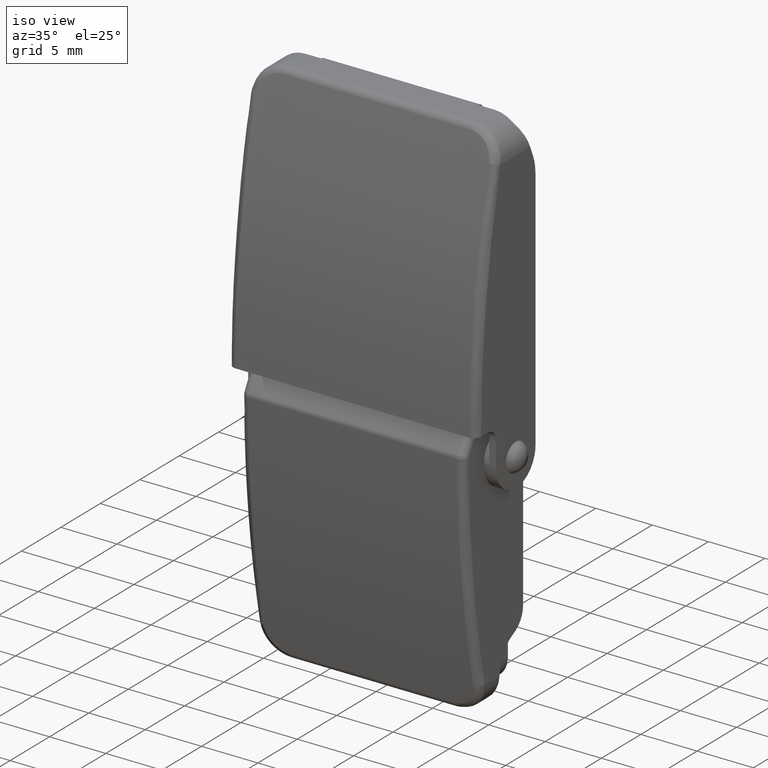
[diagram: clean part render]
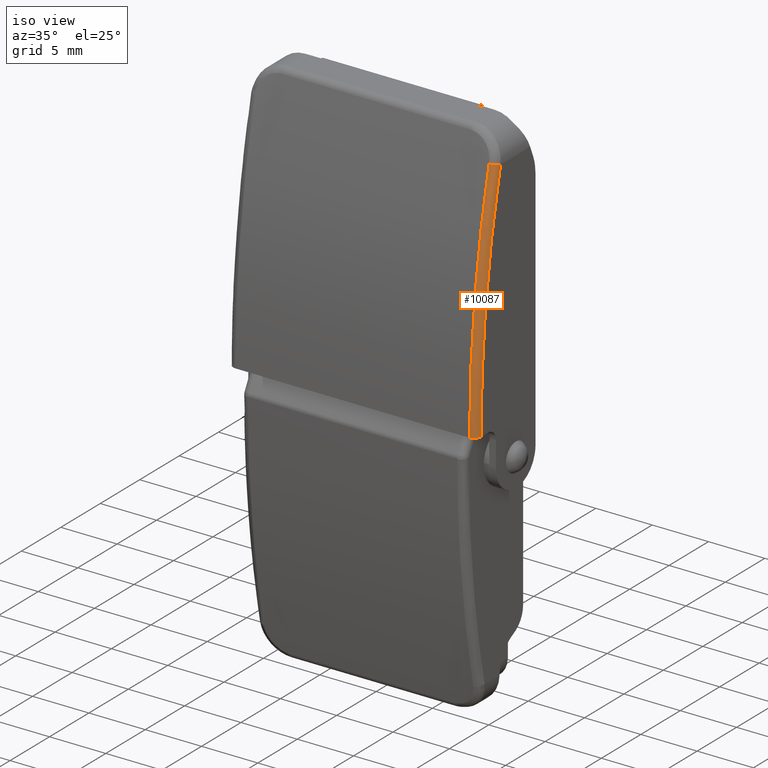
[diagram: same view with one face highlighted and labeled with its STEP entity id]
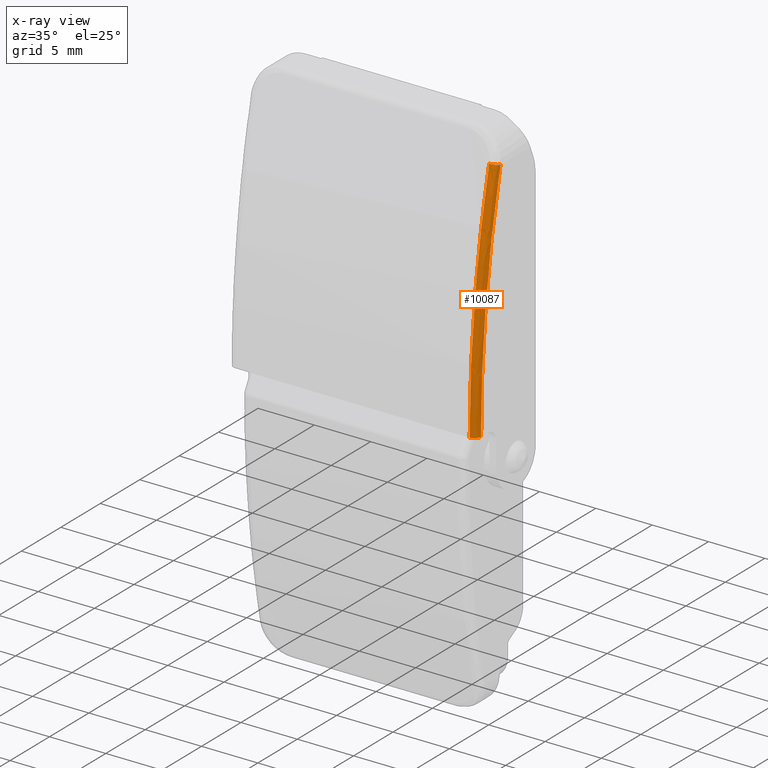
[diagram: x-ray of the same camera — body ghosted, the highlighted face saturated]
A machine part, iso view. The second image highlights one B-rep face of the part: STEP entity #10087.
The next image is the same camera in x-ray: the body ghosted, the highlighted face saturated — about 0% of this face is hidden behind the body in this view.
In plain terms, the highlighted face is a freeform B-spline surface patch.
Its self-contained STEP definition (entity closure, byte-faithful):
#10008=CARTESIAN_POINT('',(10.998547623441574,-7.352143388707867,6.249455654797401));
#10009=CARTESIAN_POINT('',(10.998547623441571,-7.488266922143183,17.904940407322439));
#10010=CARTESIAN_POINT('',(10.998547623441574,-4.649268138406348,29.210202029179726));
#10011=CARTESIAN_POINT('',(11.046522251315123,-8.040341450340110,6.241418241181255));
#10012=CARTESIAN_POINT('',(11.046522251315123,-8.177506425905913,17.986075766159409));
#10013=CARTESIAN_POINT('',(11.046522251315123,-5.316787276357438,29.377830703698869));
#10014=CARTESIAN_POINT('',(10.358277296940097,-7.992369522537929,6.241978501732986));
#10015=CARTESIAN_POINT('',(10.358277296940098,-8.129461902742774,17.980420098418794));
#10016=CARTESIAN_POINT('',(10.358277296940095,-5.270256805439781,29.366145883412496));
#10024=(BOUNDED_SURFACE()B_SPLINE_SURFACE(2,2,((#10008,#10011,#10014),(#10009,#10012,#10015),(#10010,#10013,#10016)),.UNSPECIFIED.,.F.,.F.,.U.)B_SPLINE_SURFACE_WITH_KNOTS((3,3),(3,3),(27.609394174766539,50.986343282508848),(0.125322360388190,1.218747165211290),.UNSPECIFIED.)GEOMETRIC_REPRESENTATION_ITEM()RATIONAL_B_SPLINE_SURFACE(((0.882118789328395,0.578868277632000,0.882119123008712),(0.875035926940185,0.574220327264125,0.875036257941257),(0.882583384492133,0.579173156527544,0.882583718348193)))REPRESENTATION_ITEM('')SURFACE());
#10025=CARTESIAN_POINT('',(11.000000000008200,-4.939648160148010,28.200000000017251));
#10026=VERTEX_POINT('',#10025);
#10027=CARTESIAN_POINT('',(10.400000000008200,-5.523245814548989,28.339333333350250));
#10028=VERTEX_POINT('',#10027);
#10029=CARTESIAN_POINT('',(11.000000000008200,-4.939648160148010,28.200000000017251));
#10030=CARTESIAN_POINT('',(11.000000000008201,-5.523245814548982,28.339333333350240));
#10031=CARTESIAN_POINT('',(10.400000000008200,-5.523245814548982,28.339333333350240));
#10039=(BOUNDED_CURVE()B_SPLINE_CURVE(2,(#10029,#10030,#10031),.UNSPECIFIED.,.F.,.U.)CURVE()GEOMETRIC_REPRESENTATION_ITEM()QUASI_UNIFORM_CURVE()RATIONAL_B_SPLINE_CURVE((1.0,0.707106781186547,1.0))REPRESENTATION_ITEM(''));
#10040=EDGE_CURVE('',#10026,#10028,#10039,.T.);
#10041=ORIENTED_EDGE('',*,*,#10040,.T.);
#10042=CARTESIAN_POINT('',(10.400000000008180,-8.000000000002220,7.300000000015610));
#10043=VERTEX_POINT('',#10042);
#10044=CARTESIAN_POINT('',(10.400000000008180,-8.000000000002199,7.300000000015589));
#10045=CARTESIAN_POINT('',(10.400000000008179,-8.000000000008349,17.965448645560368));
#10046=CARTESIAN_POINT('',(10.400000000008180,-5.523245814548966,28.339333333350218));
#10054=(BOUNDED_CURVE()B_SPLINE_CURVE(2,(#10044,#10045,#10046),.UNSPECIFIED.,.F.,.U.)CURVE()GEOMETRIC_REPRESENTATION_ITEM()QUASI_UNIFORM_CURVE()RATIONAL_B_SPLINE_CURVE((1.0,0.993142174448055,1.0))REPRESENTATION_ITEM(''));
#10055=EDGE_CURVE('',#10043,#10028,#10054,.T.);
#10056=ORIENTED_EDGE('',*,*,#10055,.F.);
#10057=CARTESIAN_POINT('',(11.000000000008219,-7.400000000002220,7.300000000015850));
#10058=VERTEX_POINT('',#10057);
#10059=CARTESIAN_POINT('',(11.000000000008219,-7.400000000002220,7.300000000015850));
#10060=CARTESIAN_POINT('',(11.000000000008180,-8.000000000002220,7.300000000019731));
#10061=CARTESIAN_POINT('',(10.400000000008180,-8.000000000002220,7.300000000015610));
#10069=(BOUNDED_CURVE()B_SPLINE_CURVE(2,(#10059,#10060,#10061),.UNSPECIFIED.,.F.,.U.)CURVE()GEOMETRIC_REPRESENTATION_ITEM()QUASI_UNIFORM_CURVE()RATIONAL_B_SPLINE_CURVE((1.0,0.707106781186547,1.0))REPRESENTATION_ITEM(''));
#10070=EDGE_CURVE('',#10058,#10043,#10069,.T.);
#10071=ORIENTED_EDGE('',*,*,#10070,.F.);
#10072=CARTESIAN_POINT('',(11.000000000008200,-4.939648160147983,28.200000000017251));
#10073=CARTESIAN_POINT('',(11.000000000008200,-7.400000000008316,17.894816535325287));
#10074=CARTESIAN_POINT('',(11.000000000008219,-7.400000000002220,7.300000000015850));
#10082=(BOUNDED_CURVE()B_SPLINE_CURVE(2,(#10072,#10073,#10074),.UNSPECIFIED.,.F.,.U.)CURVE()GEOMETRIC_REPRESENTATION_ITEM()QUASI_UNIFORM_CURVE()RATIONAL_B_SPLINE_CURVE((1.0,0.993142174448054,1.0))REPRESENTATION_ITEM(''));
#10083=EDGE_CURVE('',#10026,#10058,#10082,.T.);
#10084=ORIENTED_EDGE('',*,*,#10083,.F.);
#10085=EDGE_LOOP('',(#10041,#10056,#10071,#10084));
#10086=FACE_OUTER_BOUND('',#10085,.T.);
#10087=ADVANCED_FACE('',(#10086),#10024,.T.);